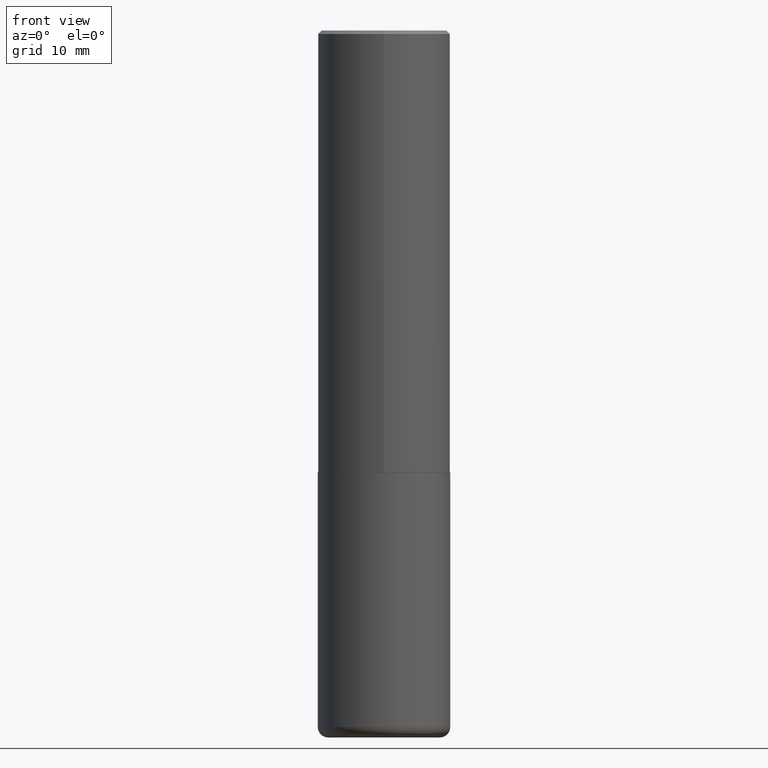
[diagram: clean part render]
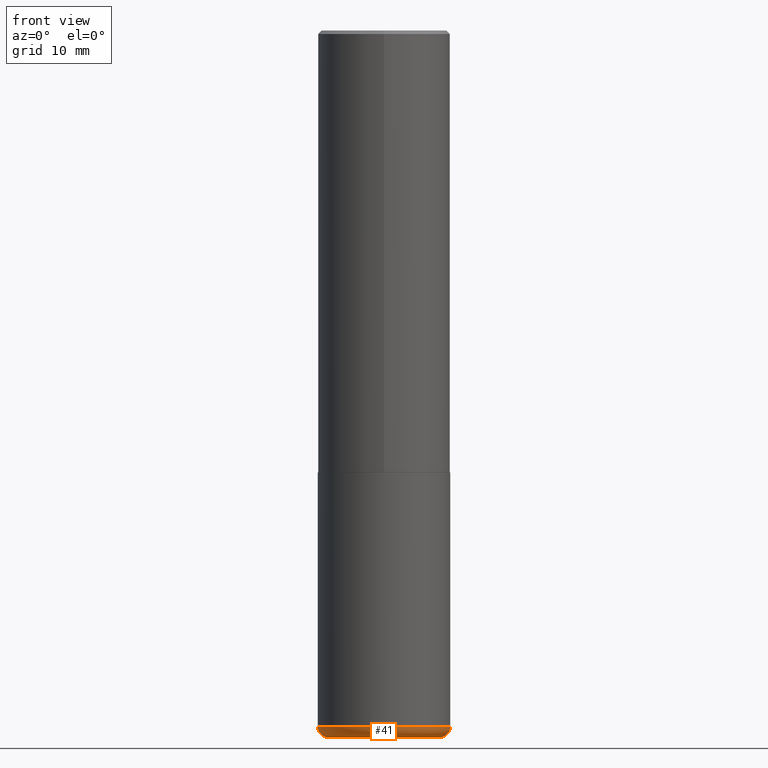
[diagram: same view with one face highlighted and labeled with its STEP entity id]
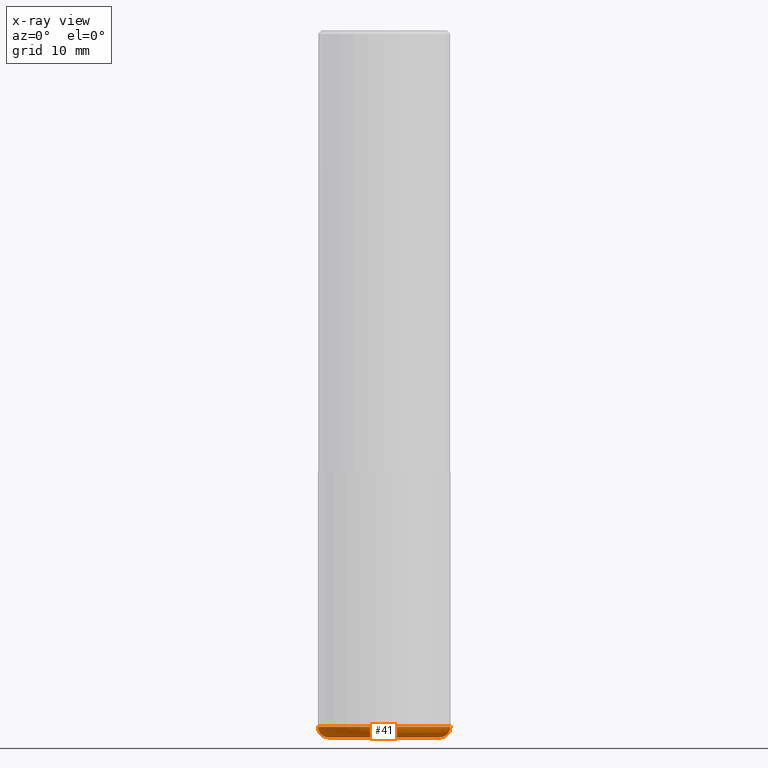
[diagram: x-ray of the same camera — body ghosted, the highlighted face saturated]
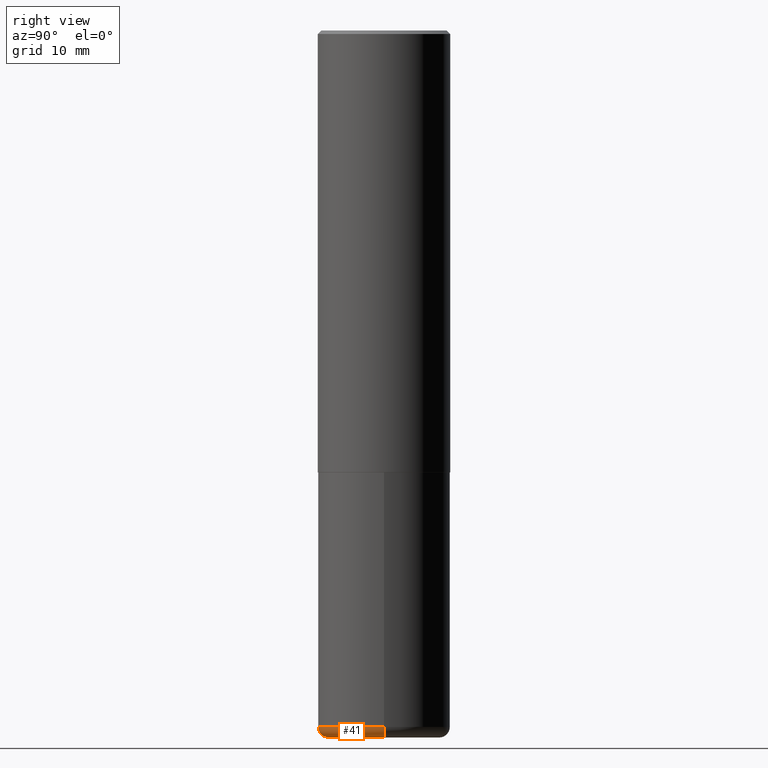
[diagram: same view with one face highlighted and labeled with its STEP entity id]
A machine part, front view. The second image highlights one B-rep face of the part: STEP entity #41.
The next image is the same camera in x-ray: the body ghosted, the highlighted face saturated — about 0% of this face is hidden behind the body in this view.
A second angle (right view) of the same face is appended — the face is thin or edge-on in the first view.
In plain terms, the highlighted toroidal blend (fillet) surface has major radius 8.001 mm and minor (blend) radius 1.524 mm.
Its self-contained STEP definition (entity closure, byte-faithful):
#1 = CIRCLE ( 'NONE', #268, 0.3750000000000000555 ) ;
#6 = DIRECTION ( 'NONE',  ( -2.445468806185136597E-29, 3.491481338843145583E-15, 1.000000000000000000 ) ) ;
#15 = CARTESIAN_POINT ( 'NONE',  ( 9.635147096369438236E-29, -1.375643647504199401E-14, -3.939999999999999947 ) ) ;
#18 = DIRECTION ( 'NONE',  ( -2.445468806185136597E-29, 3.491481338843145583E-15, 1.000000000000000000 ) ) ;
#31 = ORIENTED_EDGE ( 'NONE', *, *, #388, .F. ) ;
#34 = FACE_OUTER_BOUND ( 'NONE', #104, .T. ) ;
#41 = ADVANCED_FACE ( 'NONE', ( #34 ), #337, .T. ) ;
#44 = CARTESIAN_POINT ( 'NONE',  ( 0.3150000000000000577, -1.616555859884375729E-14, -4.000000000000000888 ) ) ;
#63 = AXIS2_PLACEMENT_3D ( 'NONE', #15, #18, #203 ) ;
#65 = AXIS2_PLACEMENT_3D ( 'NONE', #80, #304, #82 ) ;
#71 = ORIENTED_EDGE ( 'NONE', *, *, #141, .F. ) ;
#72 = ORIENTED_EDGE ( 'NONE', *, *, #235, .T. ) ;
#80 = CARTESIAN_POINT ( 'NONE',  ( -0.3150000000000000577, -1.151822685739767881E-14, -3.939999999999999947 ) ) ;
#82 = DIRECTION ( 'NONE',  ( -1.000000000000000000, 7.105427357601001859E-15, 0.000000000000000000 ) ) ;
#104 = EDGE_LOOP ( 'NONE', ( #31, #72, #179, #71 ) ) ;
#127 = DIRECTION ( 'NONE',  ( 1.000000000000000000, -6.982962677686266711E-15, 0.000000000000000000 ) ) ;
#133 = DIRECTION ( 'NONE',  ( -2.445468806185136597E-29, 3.491481338843145583E-15, 1.000000000000000000 ) ) ;
#135 = VERTEX_POINT ( 'NONE', #305 ) ;
#140 = VERTEX_POINT ( 'NONE', #44 ) ;
#141 = EDGE_CURVE ( 'NONE', #274, #135, #1, .T. ) ;
#148 = VERTEX_POINT ( 'NONE', #306 ) ;
#163 = CARTESIAN_POINT ( 'NONE',  ( 9.781875224740547508E-29, -1.396592535537258391E-14, -4.000000000000000888 ) ) ;
#179 = ORIENTED_EDGE ( 'NONE', *, *, #341, .T. ) ;
#203 = DIRECTION ( 'NONE',  ( 1.000000000000000000, -6.982962677686263555E-15, 4.883557194083111219E-29 ) ) ;
#227 = CIRCLE ( 'NONE', #65, 0.06000000000000017819 ) ;
#235 = EDGE_CURVE ( 'NONE', #148, #140, #398, .T. ) ;
#246 = AXIS2_PLACEMENT_3D ( 'NONE', #321, #336, #378 ) ;
#258 = AXIS2_PLACEMENT_3D ( 'NONE', #163, #133, #394 ) ;
#268 = AXIS2_PLACEMENT_3D ( 'NONE', #303, #6, #127 ) ;
#274 = VERTEX_POINT ( 'NONE', #349 ) ;
#303 = CARTESIAN_POINT ( 'NONE',  ( 9.635147096369438236E-29, -1.375643647504199401E-14, -3.939999999999999947 ) ) ;
#304 = DIRECTION ( 'NONE',  ( 7.105427357601001859E-15, 1.000000000000000000, -3.491481338843145583E-15 ) ) ;
#305 = CARTESIAN_POINT ( 'NONE',  ( 0.3750000000000001110, -1.637504747917434403E-14, -3.939999999999999947 ) ) ;
#306 = CARTESIAN_POINT ( 'NONE',  ( -0.3150000000000000577, -1.140980847683494193E-14, -4.000000000000000888 ) ) ;
#321 = CARTESIAN_POINT ( 'NONE',  ( 0.3150000000000000577, -1.595606971851316740E-14, -3.939999999999999947 ) ) ;
#336 = DIRECTION ( 'NONE',  ( -6.982962677686266711E-15, -1.000000000000000000, 3.491481338843145583E-15 ) ) ;
#337 = TOROIDAL_SURFACE ( 'NONE', #63, 0.3150000000000000577, 0.06000000000000021289 ) ;
#341 = EDGE_CURVE ( 'NONE', #140, #135, #403, .T. ) ;
#349 = CARTESIAN_POINT ( 'NONE',  ( -0.3750000000000001110, -1.109190121594161832E-14, -3.939999999999999947 ) ) ;
#378 = DIRECTION ( 'NONE',  ( 1.000000000000000000, -6.982962677686279332E-15, 0.000000000000000000 ) ) ;
#388 = EDGE_CURVE ( 'NONE', #148, #274, #227, .T. ) ;
#394 = DIRECTION ( 'NONE',  ( 1.000000000000000000, -6.982962677686267499E-15, 0.000000000000000000 ) ) ;
#398 = CIRCLE ( 'NONE', #258, 0.3150000000000000577 ) ;
#403 = CIRCLE ( 'NONE', #246, 0.06000000000000017819 ) ;